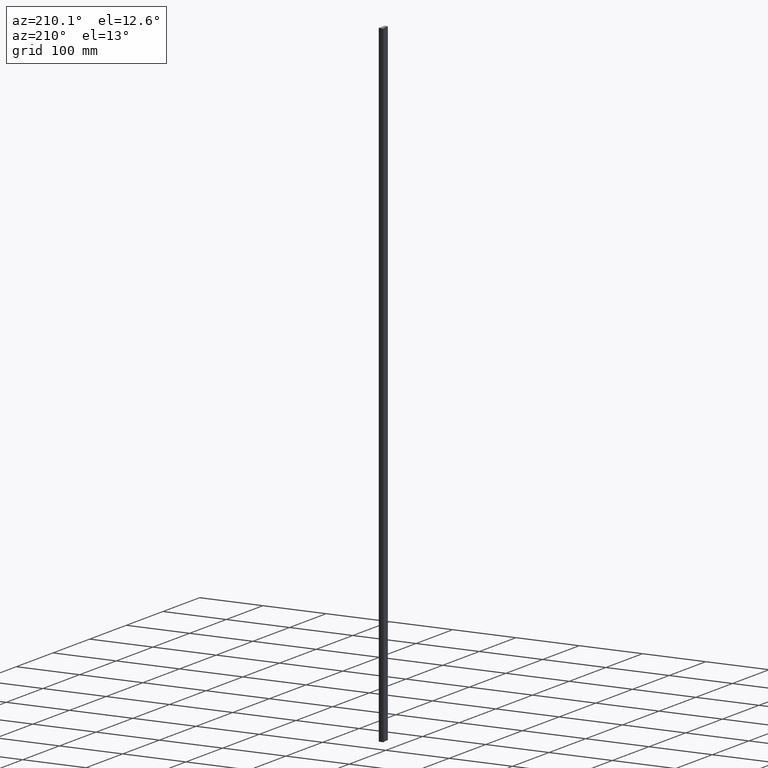
[diagram: clean part render]
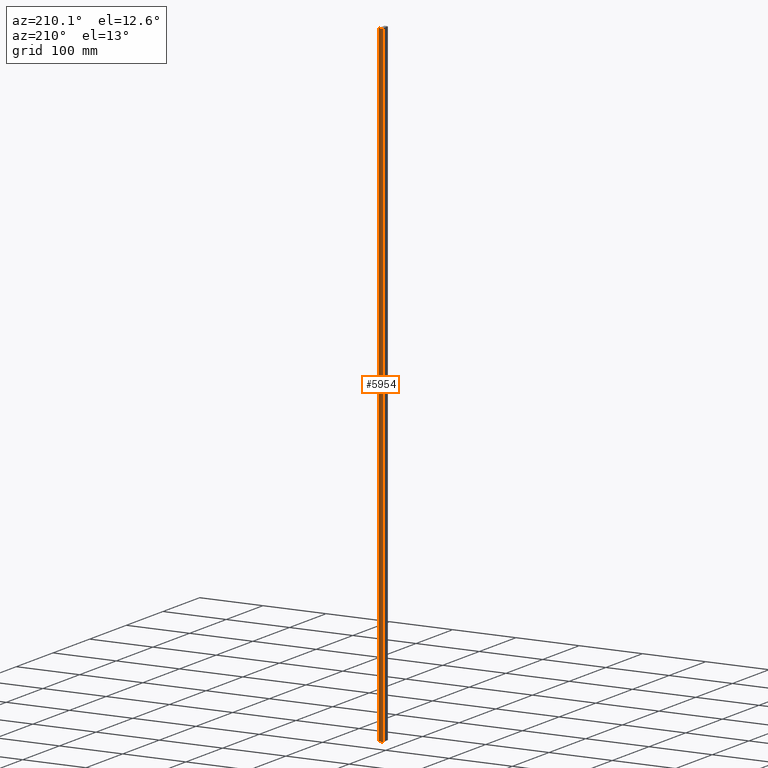
[diagram: same view with one face highlighted and labeled with its STEP entity id]
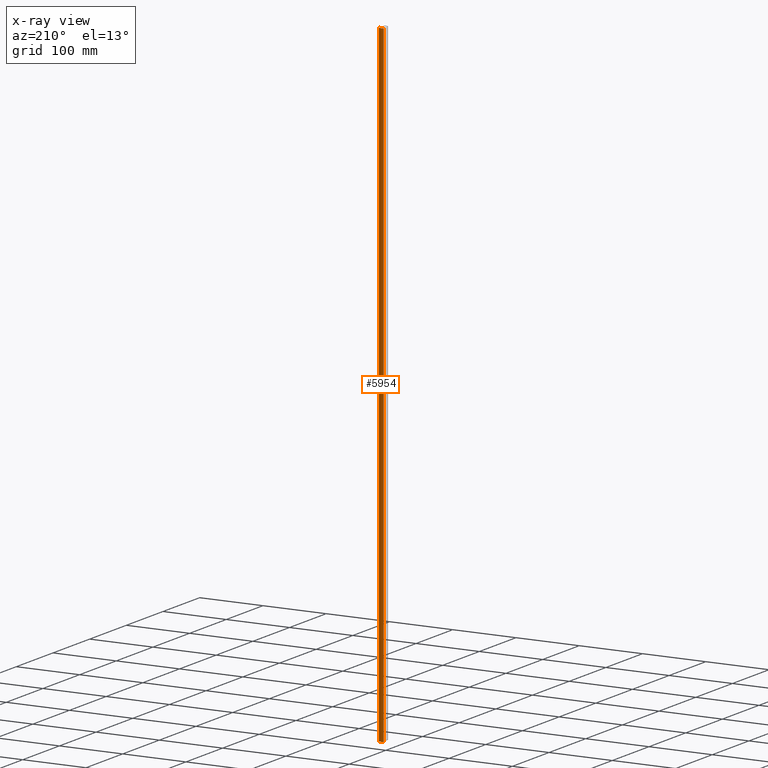
[diagram: x-ray of the same camera — body ghosted, the highlighted face saturated]
A machine part, auxiliary view. The second image highlights one B-rep face of the part: STEP entity #5954.
The next image is the same camera in x-ray: the body ghosted, the highlighted face saturated — about 0% of this face is hidden behind the body in this view.
In plain terms, the highlighted cylindrical surface (edge-blend (fillet) strip) has radius 15.4 mm, axis along (-0, -0, -1).
Its self-contained STEP definition (entity closure, byte-faithful):
#991 = AXIS2_PLACEMENT_3D ( 'NONE', #18208, #18276, #6588 ) ;
#1058 = DIRECTION ( 'NONE',  ( -0.000000000000000000, -0.000000000000000000, -1.000000000000000000 ) ) ;
#1301 = EDGE_LOOP ( 'NONE', ( #5155, #14444, #10100, #11314 ) ) ;
#2041 = CARTESIAN_POINT ( 'NONE',  ( -3.751626254138909378, 1.100000000000000311, 500.0000000000000000 ) ) ;
#2646 = LINE ( 'NONE', #11145, #9896 ) ;
#3263 = VERTEX_POINT ( 'NONE', #14781 ) ;
#3457 = DIRECTION ( 'NONE',  ( -1.000000000000000000, 0.000000000000000000, 0.000000000000000000 ) ) ;
#3514 = DIRECTION ( 'NONE',  ( -0.000000000000000000, -0.000000000000000000, -1.000000000000000000 ) ) ;
#4296 = LINE ( 'NONE', #13321, #14246 ) ;
#5155 = ORIENTED_EDGE ( 'NONE', *, *, #18702, .T. ) ;
#5954 = ADVANCED_FACE ( 'NONE', ( #15994 ), #14831, .T. ) ;
#6588 = DIRECTION ( 'NONE',  ( 1.000000000000000000, 0.000000000000000000, 0.000000000000000000 ) ) ;
#7669 = CARTESIAN_POINT ( 'NONE',  ( -3.751626254138909378, 1.100000000000000311, 500.0000000000000000 ) ) ;
#8029 = CARTESIAN_POINT ( 'NONE',  ( 2.191856423022882527, 15.30686501893636375, 500.0000000000000000 ) ) ;
#9896 = VECTOR ( 'NONE', #1058, 1000.000000000000000 ) ;
#10100 = ORIENTED_EDGE ( 'NONE', *, *, #18591, .F. ) ;
#11145 = CARTESIAN_POINT ( 'NONE',  ( -5.913406734871855974, 16.34751472054124832, 500.0000000000000000 ) ) ;
#11314 = ORIENTED_EDGE ( 'NONE', *, *, #13084, .T. ) ;
#12277 = CARTESIAN_POINT ( 'NONE',  ( 2.191856423022882527, 15.30686501893636375, -500.0000000000000000 ) ) ;
#12415 = VERTEX_POINT ( 'NONE', #12277 ) ;
#13084 = EDGE_CURVE ( 'NONE', #18747, #12415, #4296, .T. ) ;
#13177 = CARTESIAN_POINT ( 'NONE',  ( -5.913406734871855974, 16.34751472054124832, -500.0000000000000000 ) ) ;
#13321 = CARTESIAN_POINT ( 'NONE',  ( 2.191856423022882527, 15.30686501893636375, 500.0000000000000000 ) ) ;
#14246 = VECTOR ( 'NONE', #18023, 1000.000000000000000 ) ;
#14444 = ORIENTED_EDGE ( 'NONE', *, *, #15112, .F. ) ;
#14595 = CIRCLE ( 'NONE', #15588, 15.40000000000000036 ) ;
#14781 = CARTESIAN_POINT ( 'NONE',  ( -5.913406734871855974, 16.34751472054124832, 500.0000000000000000 ) ) ;
#14831 = CYLINDRICAL_SURFACE ( 'NONE', #16736, 15.40000000000000036 ) ;
#14887 = DIRECTION ( 'NONE',  ( 1.000000000000000000, 0.000000000000000000, 0.000000000000000000 ) ) ;
#15112 = EDGE_CURVE ( 'NONE', #3263, #15342, #2646, .T. ) ;
#15259 = CIRCLE ( 'NONE', #991, 15.40000000000000036 ) ;
#15342 = VERTEX_POINT ( 'NONE', #13177 ) ;
#15588 = AXIS2_PLACEMENT_3D ( 'NONE', #7669, #16485, #14887 ) ;
#15994 = FACE_OUTER_BOUND ( 'NONE', #1301, .T. ) ;
#16485 = DIRECTION ( 'NONE',  ( -0.000000000000000000, 0.000000000000000000, 1.000000000000000000 ) ) ;
#16736 = AXIS2_PLACEMENT_3D ( 'NONE', #2041, #3514, #3457 ) ;
#18023 = DIRECTION ( 'NONE',  ( -0.000000000000000000, -0.000000000000000000, -1.000000000000000000 ) ) ;
#18208 = CARTESIAN_POINT ( 'NONE',  ( -3.751626254138909378, 1.100000000000000311, -500.0000000000000000 ) ) ;
#18276 = DIRECTION ( 'NONE',  ( -0.000000000000000000, 0.000000000000000000, 1.000000000000000000 ) ) ;
#18591 = EDGE_CURVE ( 'NONE', #18747, #3263, #14595, .T. ) ;
#18702 = EDGE_CURVE ( 'NONE', #12415, #15342, #15259, .T. ) ;
#18747 = VERTEX_POINT ( 'NONE', #8029 ) ;